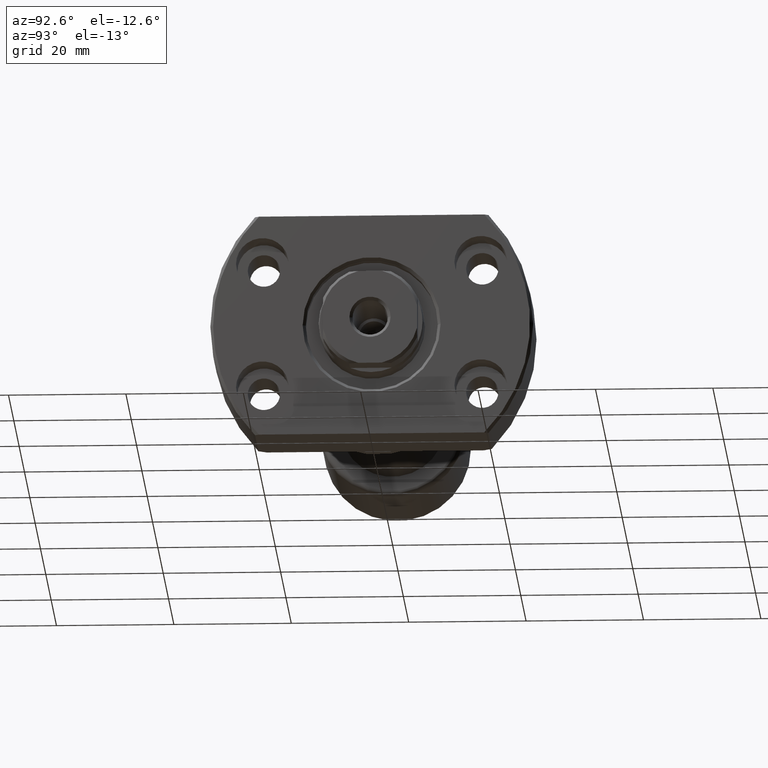
[diagram: clean part render]
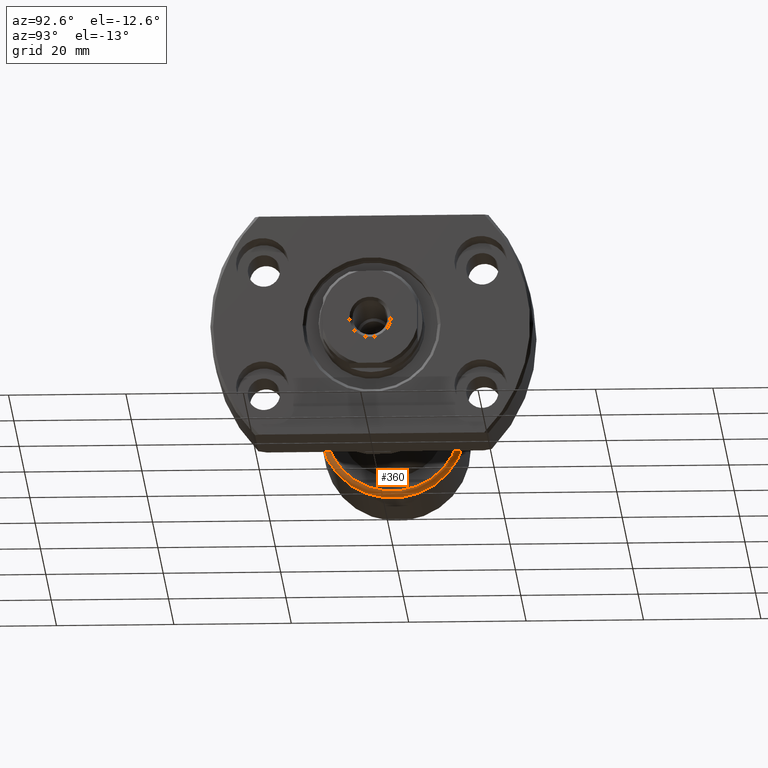
[diagram: same view with one face highlighted and labeled with its STEP entity id]
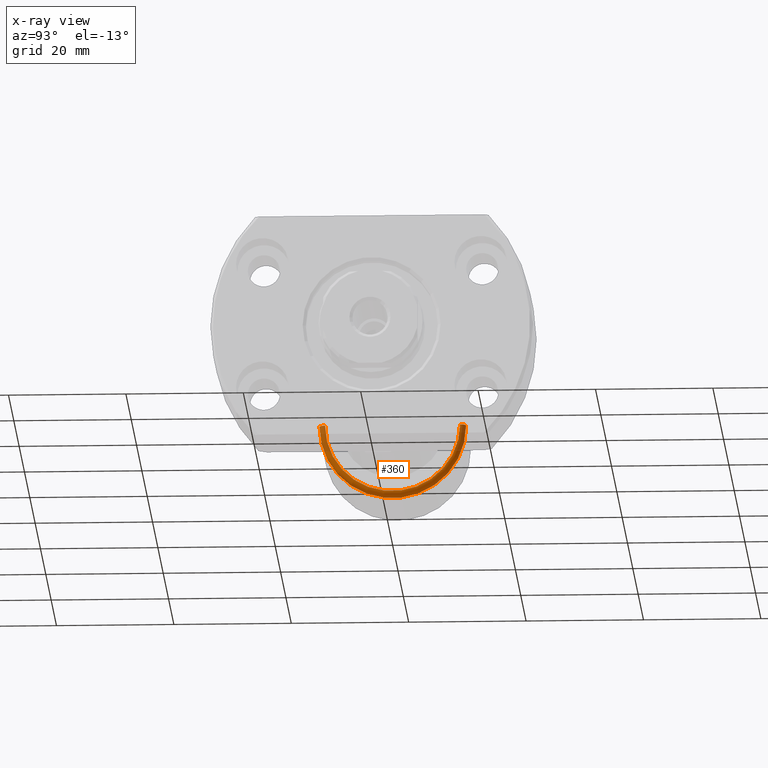
[diagram: x-ray of the same camera — body ghosted, the highlighted face saturated]
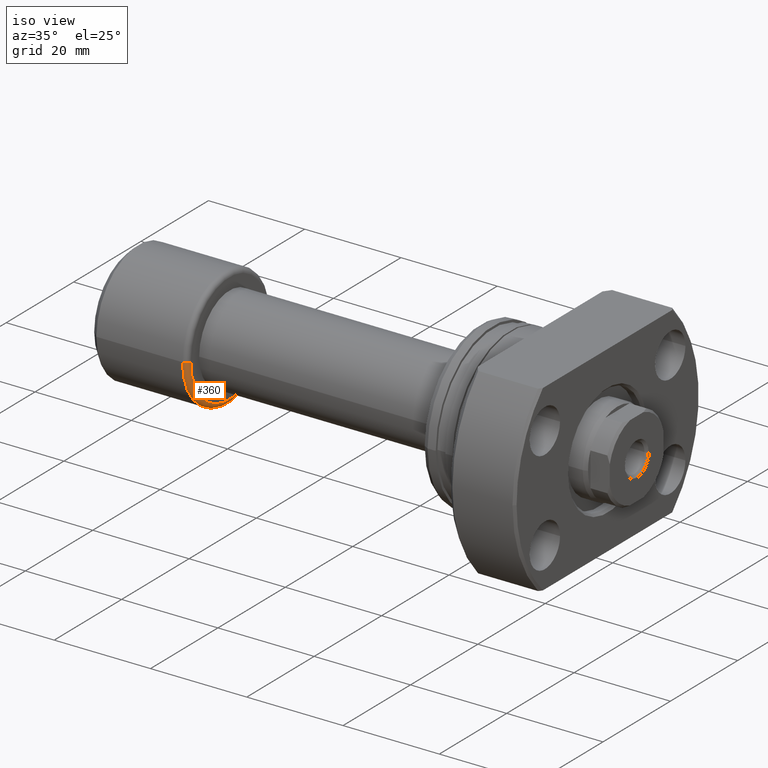
[diagram: same view with one face highlighted and labeled with its STEP entity id]
A machine part, auxiliary view. The second image highlights one B-rep face of the part: STEP entity #360.
The next image is the same camera in x-ray: the body ghosted, the highlighted face saturated — about 22% of this face is hidden behind the body in this view.
A second angle (iso view) of the same face is appended — the face is thin or edge-on in the first view.
In plain terms, the highlighted toroidal blend (fillet) surface has major radius 11.5 mm and minor (blend) radius 1 mm.
Its self-contained STEP definition (entity closure, byte-faithful):
#29 = AXIS2_PLACEMENT_3D ( 'NONE', #3181, #1927, #992 ) ;
#42 = AXIS2_PLACEMENT_3D ( 'NONE', #2981, #1507, #2247 ) ;
#150 = EDGE_CURVE ( 'NONE', #2062, #431, #2671, .T. ) ;
#360 = ADVANCED_FACE ( 'NONE', ( #2531 ), #2723, .T. ) ;
#369 = VERTEX_POINT ( 'NONE', #1040 ) ;
#431 = VERTEX_POINT ( 'NONE', #1222 ) ;
#551 = CIRCLE ( 'NONE', #29, 12.50000000000000000 ) ;
#810 = CARTESIAN_POINT ( 'NONE',  ( 19.39999999999999503, 0.000000000000000000, 0.000000000000000000 ) ) ;
#955 = EDGE_CURVE ( 'NONE', #2309, #369, #551, .T. ) ;
#991 = DIRECTION ( 'NONE',  ( -1.000000000000000000, -1.069542322069065801E-17, -0.000000000000000000 ) ) ;
#992 = DIRECTION ( 'NONE',  ( 0.000000000000000000, -1.000000000000000000, 0.000000000000000000 ) ) ;
#1040 = CARTESIAN_POINT ( 'NONE',  ( 19.39999999999999503, -12.50000000000000000, 0.000000000000000000 ) ) ;
#1100 = ORIENTED_EDGE ( 'NONE', *, *, #2805, .F. ) ;
#1222 = CARTESIAN_POINT ( 'NONE',  ( 20.39999999999999503, -11.50000000000000000, 0.000000000000000000 ) ) ;
#1231 = DIRECTION ( 'NONE',  ( 0.000000000000000000, -1.000000000000000000, 0.000000000000000000 ) ) ;
#1507 = DIRECTION ( 'NONE',  ( 1.309811581274509052E-33, -1.224646799147353207E-16, 1.000000000000000000 ) ) ;
#1527 = DIRECTION ( 'NONE',  ( 1.069542322069065955E-17, -1.000000000000000000, 0.000000000000000000 ) ) ;
#1554 = ORIENTED_EDGE ( 'NONE', *, *, #1679, .T. ) ;
#1679 = EDGE_CURVE ( 'NONE', #431, #369, #1956, .T. ) ;
#1747 = CARTESIAN_POINT ( 'NONE',  ( 20.39999999999999503, 2.181866337020893623E-16, 0.000000000000000000 ) ) ;
#1852 = DIRECTION ( 'NONE',  ( -1.000000000000000000, 0.000000000000000000, 0.000000000000000000 ) ) ;
#1927 = DIRECTION ( 'NONE',  ( -1.000000000000000000, -1.069542322069065801E-17, -0.000000000000000000 ) ) ;
#1956 = CIRCLE ( 'NONE', #3165, 1.000000000000000888 ) ;
#2062 = VERTEX_POINT ( 'NONE', #2845 ) ;
#2122 = CIRCLE ( 'NONE', #42, 1.000000000000000888 ) ;
#2160 = ORIENTED_EDGE ( 'NONE', *, *, #150, .T. ) ;
#2184 = CARTESIAN_POINT ( 'NONE',  ( 19.39999999999999503, 12.50000000000000000, 1.530808498934191521E-15 ) ) ;
#2247 = DIRECTION ( 'NONE',  ( 0.000000000000000000, -1.000000000000000000, -1.224646799147353454E-16 ) ) ;
#2296 = ORIENTED_EDGE ( 'NONE', *, *, #955, .F. ) ;
#2309 = VERTEX_POINT ( 'NONE', #2184 ) ;
#2531 = FACE_OUTER_BOUND ( 'NONE', #2825, .T. ) ;
#2671 = CIRCLE ( 'NONE', #2829, 11.50000000000000000 ) ;
#2713 = DIRECTION ( 'NONE',  ( -1.000000000000000000, -1.069542322069065801E-17, -0.000000000000000000 ) ) ;
#2723 = TOROIDAL_SURFACE ( 'NONE', #3201, 11.50000000000000000, 1.000000000000000888 ) ;
#2805 = EDGE_CURVE ( 'NONE', #2062, #2309, #2122, .T. ) ;
#2818 = CARTESIAN_POINT ( 'NONE',  ( 19.39999999999999503, -11.50000000000000000, 0.000000000000000000 ) ) ;
#2825 = EDGE_LOOP ( 'NONE', ( #1100, #2160, #1554, #2296 ) ) ;
#2829 = AXIS2_PLACEMENT_3D ( 'NONE', #1747, #991, #1231 ) ;
#2845 = CARTESIAN_POINT ( 'NONE',  ( 20.39999999999999503, 11.50000000000000000, 1.469576158976823947E-15 ) ) ;
#2855 = DIRECTION ( 'NONE',  ( 0.000000000000000000, 0.000000000000000000, -1.000000000000000000 ) ) ;
#2981 = CARTESIAN_POINT ( 'NONE',  ( 19.39999999999999503, 11.50000000000000000, 1.408343819019456176E-15 ) ) ;
#3165 = AXIS2_PLACEMENT_3D ( 'NONE', #2818, #2855, #1852 ) ;
#3181 = CARTESIAN_POINT ( 'NONE',  ( 19.39999999999999503, 2.074912104813986935E-16, 0.000000000000000000 ) ) ;
#3201 = AXIS2_PLACEMENT_3D ( 'NONE', #810, #2713, #1527 ) ;